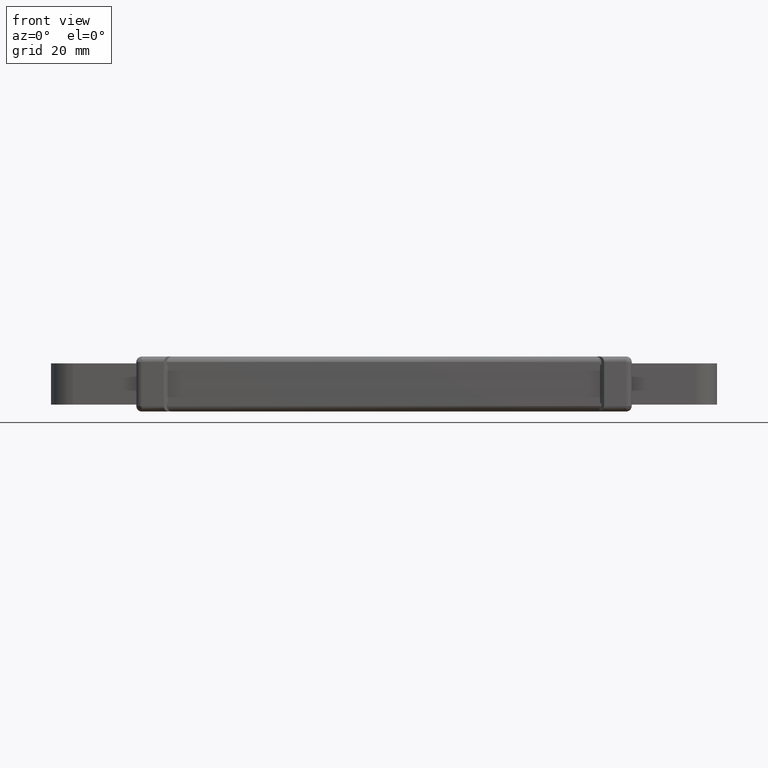
[diagram: clean part render]
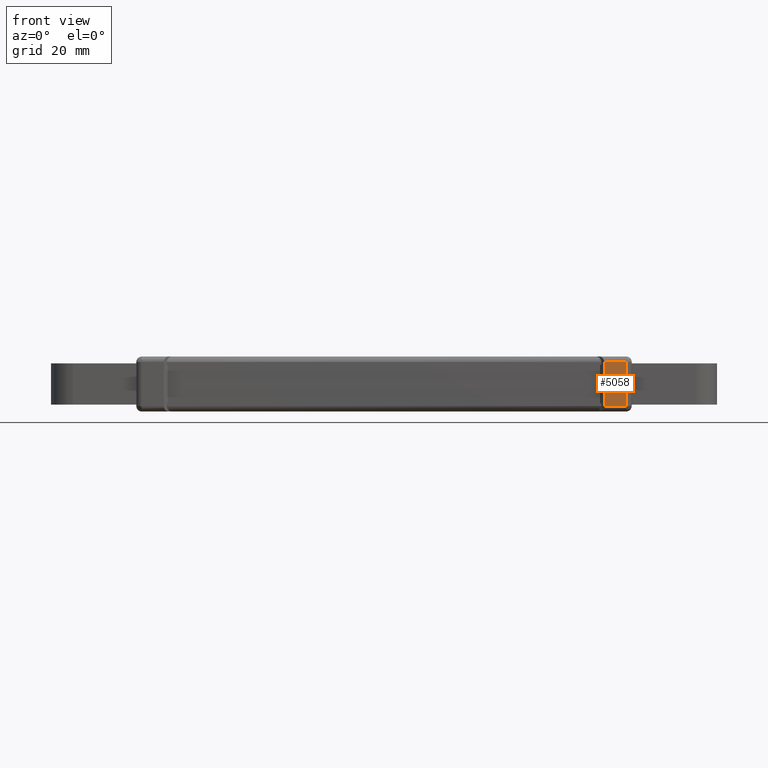
[diagram: same view with one face highlighted and labeled with its STEP entity id]
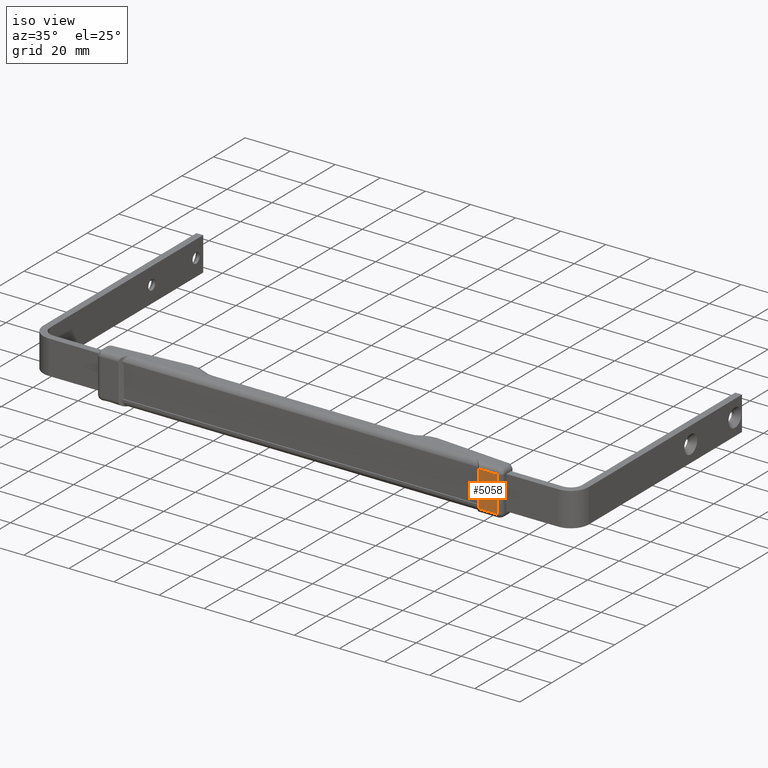
[diagram: same view with one face highlighted and labeled with its STEP entity id]
A machine part, front view. The second image highlights one B-rep face of the part: STEP entity #5058.
A second angle (iso view) of the same face is appended — the face is thin or edge-on in the first view.
In plain terms, the highlighted face is a freeform B-spline surface patch.
Its self-contained STEP definition (entity closure, byte-faithful):
#2754=CARTESIAN_POINT('',(88.0,8.0,3.0));
#2755=VERTEX_POINT('',#2754);
#2799=CARTESIAN_POINT('',(88.0,-8.0,3.0));
#2800=VERTEX_POINT('',#2799);
#2822=CARTESIAN_POINT('',(88.0,-8.0,3.0));
#2823=CARTESIAN_POINT('',(88.0,8.0,3.0));
#2824=QUASI_UNIFORM_CURVE('',1,(#2822,#2823),.UNSPECIFIED.,.F.,.U.);
#2825=EDGE_CURVE('',#2800,#2755,#2824,.T.);
#3625=CARTESIAN_POINT('',(80.0,8.0,3.0));
#3626=VERTEX_POINT('',#3625);
#3627=CARTESIAN_POINT('',(88.0,8.0,3.0));
#3628=CARTESIAN_POINT('',(80.0,8.0,3.0));
#3629=QUASI_UNIFORM_CURVE('',1,(#3627,#3628),.UNSPECIFIED.,.F.,.U.);
#3630=EDGE_CURVE('',#2755,#3626,#3629,.T.);
#3678=CARTESIAN_POINT('',(80.0,-8.0,3.0));
#3679=VERTEX_POINT('',#3678);
#3680=CARTESIAN_POINT('',(80.0,-8.0,3.0));
#3681=CARTESIAN_POINT('',(88.0,-8.0,3.0));
#3682=QUASI_UNIFORM_CURVE('',1,(#3680,#3681),.UNSPECIFIED.,.F.,.U.);
#3683=EDGE_CURVE('',#3679,#2800,#3682,.T.);
#4738=CARTESIAN_POINT('',(80.0,8.0,3.0));
#4739=CARTESIAN_POINT('',(80.0,-8.0,3.0));
#4740=QUASI_UNIFORM_CURVE('',1,(#4738,#4739),.UNSPECIFIED.,.F.,.U.);
#4741=EDGE_CURVE('',#3626,#3679,#4740,.T.);
#5047=CARTESIAN_POINT('',(79.600400015505556,-8.799199968988896,3.0));
#5048=CARTESIAN_POINT('',(88.399600199071159,-8.799199968988896,3.0));
#5049=CARTESIAN_POINT('',(79.600400015505556,8.799200398142338,3.0));
#5050=CARTESIAN_POINT('',(88.399600199071159,8.799200398142338,3.0));
#5051=B_SPLINE_SURFACE_WITH_KNOTS('',1,1,((#5047,#5049),(#5048,#5050)),.UNSPECIFIED.,.F.,.F.,.U.,(2,2),(2,2),(0.0,8.799200183565603),(0.0,17.598400367131230),.UNSPECIFIED.);
#5052=ORIENTED_EDGE('',*,*,#3683,.T.);
#5053=ORIENTED_EDGE('',*,*,#2825,.T.);
#5054=ORIENTED_EDGE('',*,*,#3630,.T.);
#5055=ORIENTED_EDGE('',*,*,#4741,.T.);
#5056=EDGE_LOOP('',(#5052,#5053,#5054,#5055));
#5057=FACE_OUTER_BOUND('',#5056,.T.);
#5058=ADVANCED_FACE('',(#5057),#5051,.T.);